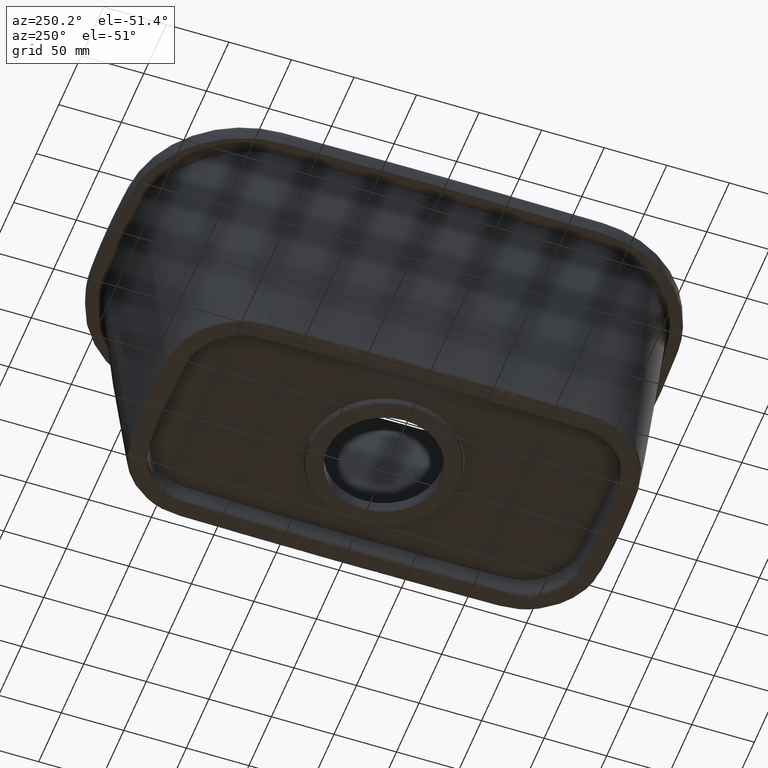
[diagram: clean part render]
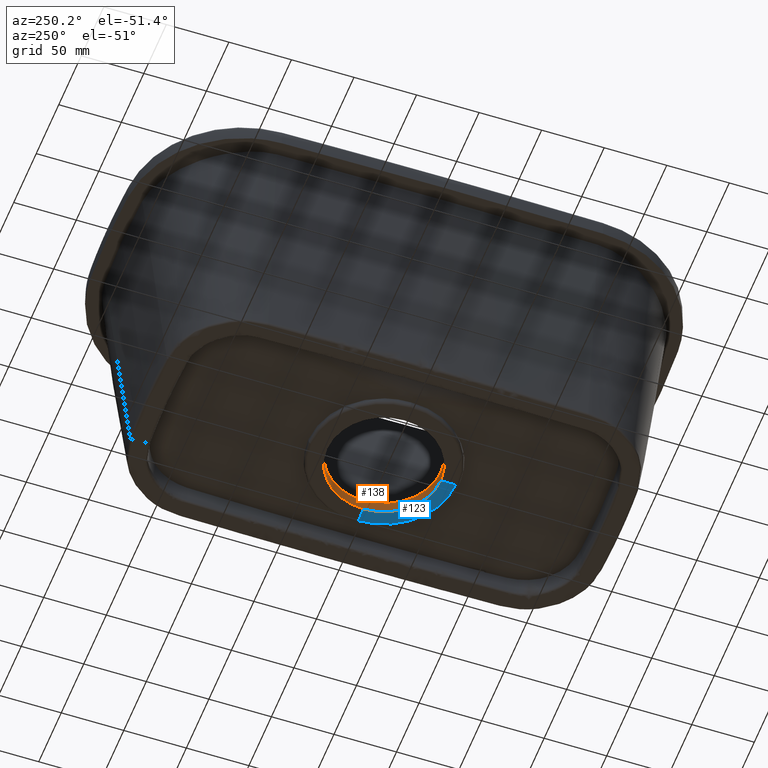
[diagram: same view with the hole feature highlighted: cylindrical wall and planar end face, labeled with their STEP entity ids]
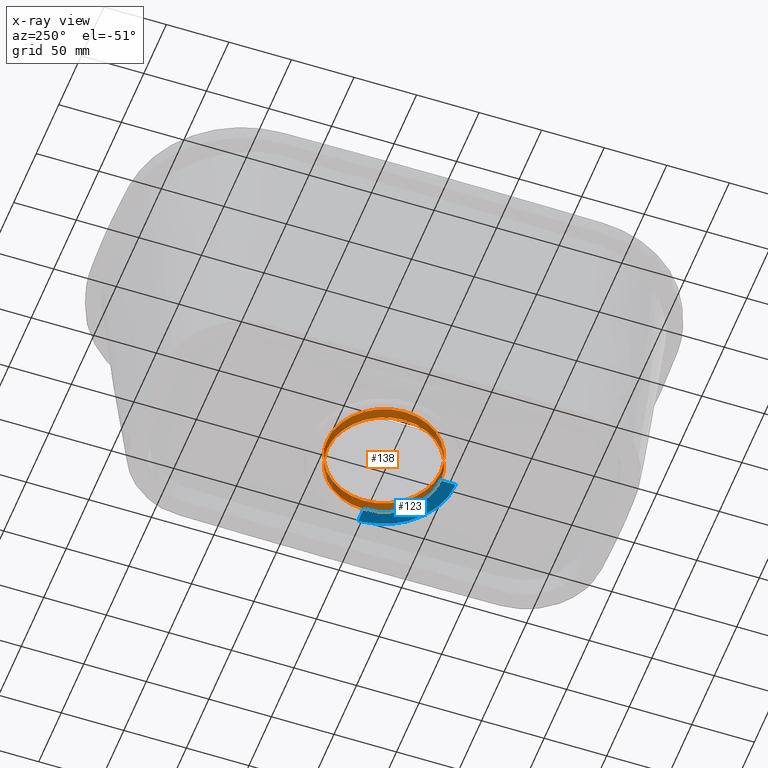
[diagram: x-ray of the same camera — body ghosted, the hole faces saturated]
A machine part, auxiliary view. The highlighted faces form one hole feature of diameter 90.7136 mm: the cylindrical wall (entity #138, orange) and its adjacent planar end face (entity #123, blue) — they share a circular edge in the B-rep.
The next image is the same camera in x-ray (body ghosted, the hole faces saturated) — the bore reads through the body.
Wall:
#42=CYLINDRICAL_SURFACE('',#1295,45.3567920678671);
#43=FACE_BOUND('',#324,.T.);
#44=FACE_BOUND('',#325,.T.);
#138=ADVANCED_FACE('',(#43,#44),#42,.F.);
#324=EDGE_LOOP('',(#596,#597,#598,#599));
#325=EDGE_LOOP('',(#600,#601,#602,#603));
#406=CIRCLE('',#1281,45.3567920678671);
#407=CIRCLE('',#1283,45.3567920678671);
#408=CIRCLE('',#1285,45.3567920678671);
#409=CIRCLE('',#1287,45.3567920678671);
#410=CIRCLE('',#1289,45.3567920678671);
#411=CIRCLE('',#1291,45.3567920678671);
#412=CIRCLE('',#1293,45.3567920678671);
#413=CIRCLE('',#1294,45.3567920678671);
#596=ORIENTED_EDGE('',*,*,#1027,.F.);
#597=ORIENTED_EDGE('',*,*,#1028,.F.);
#598=ORIENTED_EDGE('',*,*,#1026,.T.);
#599=ORIENTED_EDGE('',*,*,#995,.T.);
#600=ORIENTED_EDGE('',*,*,#984,.T.);
#601=ORIENTED_EDGE('',*,*,#987,.T.);
#602=ORIENTED_EDGE('',*,*,#989,.T.);
#603=ORIENTED_EDGE('',*,*,#991,.T.);
#856=VERTEX_POINT('',#65377);
#857=VERTEX_POINT('',#65378);
#858=VERTEX_POINT('',#65383);
#859=VERTEX_POINT('',#65387);
#861=VERTEX_POINT('',#65394);
#863=VERTEX_POINT('',#65415);
#881=VERTEX_POINT('',#68225);
#882=VERTEX_POINT('',#68247);
#984=EDGE_CURVE('',#856,#857,#406,.T.);
#987=EDGE_CURVE('',#857,#858,#407,.T.);
#989=EDGE_CURVE('',#858,#859,#408,.T.);
#991=EDGE_CURVE('',#859,#856,#409,.T.);
#995=EDGE_CURVE('',#861,#863,#410,.T.);
#1026=EDGE_CURVE('',#881,#861,#411,.T.);
#1027=EDGE_CURVE('',#882,#863,#412,.T.);
#1028=EDGE_CURVE('',#881,#882,#413,.T.);
#1281=AXIS2_PLACEMENT_3D('',#65376,#1335,#1336);
#1283=AXIS2_PLACEMENT_3D('',#65382,#1341,#1342);
#1285=AXIS2_PLACEMENT_3D('',#65386,#1346,#1347);
#1287=AXIS2_PLACEMENT_3D('',#65390,#1351,#1352);
#1289=AXIS2_PLACEMENT_3D('',#65416,#1357,#1358);
#1291=AXIS2_PLACEMENT_3D('',#68244,#1362,#1363);
#1293=AXIS2_PLACEMENT_3D('',#68246,#1366,#1367);
#1294=AXIS2_PLACEMENT_3D('',#68248,#1368,#1369);
#1295=AXIS2_PLACEMENT_3D('',#68249,#1370,#1371);
#1335=DIRECTION('',(0.,0.,-1.));
#1336=DIRECTION('',(1.,0.,0.));
#1341=DIRECTION('',(0.,0.,-1.));
#1342=DIRECTION('',(1.,0.,0.));
#1346=DIRECTION('',(0.,0.,-1.));
#1347=DIRECTION('',(1.,0.,0.));
#1351=DIRECTION('',(0.,0.,-1.));
#1352=DIRECTION('',(1.,0.,0.));
#1357=DIRECTION('',(0.,0.,1.));
#1358=DIRECTION('',(1.,0.,0.));
#1362=DIRECTION('',(0.,0.,1.));
#1363=DIRECTION('',(-1.,0.,0.));
#1366=DIRECTION('',(0.,0.,-1.));
#1367=DIRECTION('',(1.,0.,0.));
#1368=DIRECTION('',(0.,0.,-1.));
#1369=DIRECTION('',(-1.,0.,0.));
#1370=DIRECTION('',(0.,0.,-1.));
#1371=DIRECTION('',(-1.,0.,0.));
#65376=CARTESIAN_POINT('',(0.,0.,-20.0000000000001));
#65377=CARTESIAN_POINT('',(0.,-45.3567920678671,-20.0000000000001));
#65378=CARTESIAN_POINT('',(-45.3567920678671,0.,-20.0000000000001));
#65382=CARTESIAN_POINT('',(0.,0.,-20.0000000000001));
#65383=CARTESIAN_POINT('',(0.,45.3567920678671,-20.0000000000001));
#65386=CARTESIAN_POINT('',(0.,0.,-20.0000000000001));
#65387=CARTESIAN_POINT('',(45.3567920678671,0.,-20.0000000000001));
#65390=CARTESIAN_POINT('',(0.,0.,-20.0000000000001));
#65394=CARTESIAN_POINT('',(0.,-45.3567920678671,-9.89763571439079));
#65415=CARTESIAN_POINT('',(45.3567920678671,0.,-9.89763571439079));
#65416=CARTESIAN_POINT('',(0.,0.,-9.89763571439079));
#68225=CARTESIAN_POINT('',(-45.3567920678671,0.,-9.89763571439079));
#68244=CARTESIAN_POINT('',(0.,0.,-9.89763571439079));
#68246=CARTESIAN_POINT('',(0.,0.,-9.89763571439079));
#68247=CARTESIAN_POINT('',(0.,45.3567920678671,-9.89763571439079));
#68248=CARTESIAN_POINT('',(0.,0.,-9.89763571439079));
#68249=CARTESIAN_POINT('',(0.,0.,10.1023642856092));
End face:
#54=PLANE('',#1288);
#123=ADVANCED_FACE('',(#229),#54,.F.);
#229=FACE_OUTER_BOUND('',#309,.T.);
#309=EDGE_LOOP('',(#524,#525,#526,#527));
#376=LINE('',#65379,#386);
#379=LINE('',#65388,#389);
#386=VECTOR('',#1337,1.);
#389=VECTOR('',#1348,1.);
#405=CIRCLE('',#1279,57.305636931622);
#409=CIRCLE('',#1287,45.3567920678671);
#524=ORIENTED_EDGE('',*,*,#991,.F.);
#525=ORIENTED_EDGE('',*,*,#990,.T.);
#526=ORIENTED_EDGE('',*,*,#955,.T.);
#527=ORIENTED_EDGE('',*,*,#985,.T.);
#833=VERTEX_POINT('',#2137);
#835=VERTEX_POINT('',#2145);
#856=VERTEX_POINT('',#65377);
#859=VERTEX_POINT('',#65387);
#955=EDGE_CURVE('',#835,#833,#405,.T.);
#985=EDGE_CURVE('',#833,#856,#376,.T.);
#990=EDGE_CURVE('',#859,#835,#379,.T.);
#991=EDGE_CURVE('',#859,#856,#409,.T.);
#1279=AXIS2_PLACEMENT_3D('',#2148,#1331,#1332);
#1287=AXIS2_PLACEMENT_3D('',#65390,#1351,#1352);
#1288=AXIS2_PLACEMENT_3D('',#65391,#1353,#1354);
#1331=DIRECTION('',(0.,0.,-1.));
#1332=DIRECTION('',(1.,0.,0.));
#1337=DIRECTION('',(0.,1.,0.));
#1348=DIRECTION('',(1.,0.,0.));
#1351=DIRECTION('',(0.,0.,-1.));
#1352=DIRECTION('',(1.,0.,0.));
#1353=DIRECTION('',(0.,0.,1.));
#1354=DIRECTION('',(1.,0.,0.));
#2137=CARTESIAN_POINT('',(0.,-57.305636931622,-20.0000000000001));
#2145=CARTESIAN_POINT('',(57.305636931622,0.,-20.0000000000001));
#2148=CARTESIAN_POINT('',(0.,0.,-20.0000000000001));
#65377=CARTESIAN_POINT('',(0.,-45.3567920678671,-20.0000000000001));
#65379=CARTESIAN_POINT('',(0.,-4.88498130835069E-15,-20.0000000000001));
#65387=CARTESIAN_POINT('',(45.3567920678671,0.,-20.0000000000001));
#65388=CARTESIAN_POINT('',(0.,0.,-20.0000000000001));
#65390=CARTESIAN_POINT('',(0.,0.,-20.0000000000001));
#65391=CARTESIAN_POINT('',(0.,-4.88498130835069E-15,-20.0000000000001));